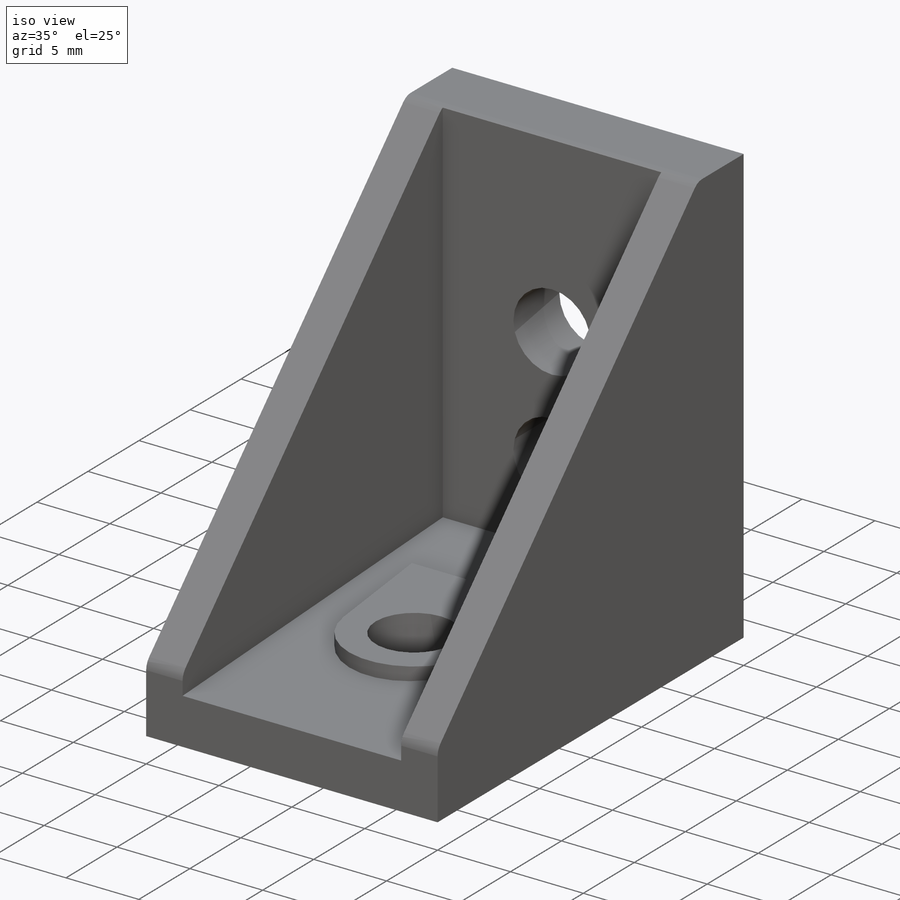
[diagram: iso view]
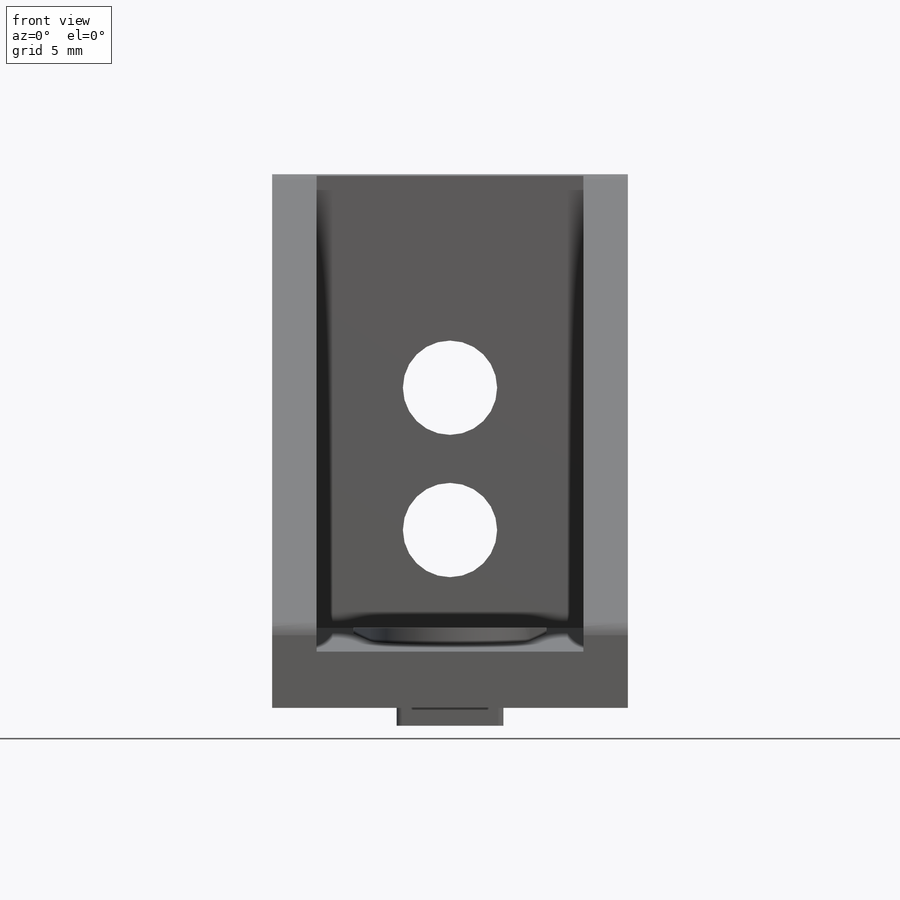
[diagram: front view]
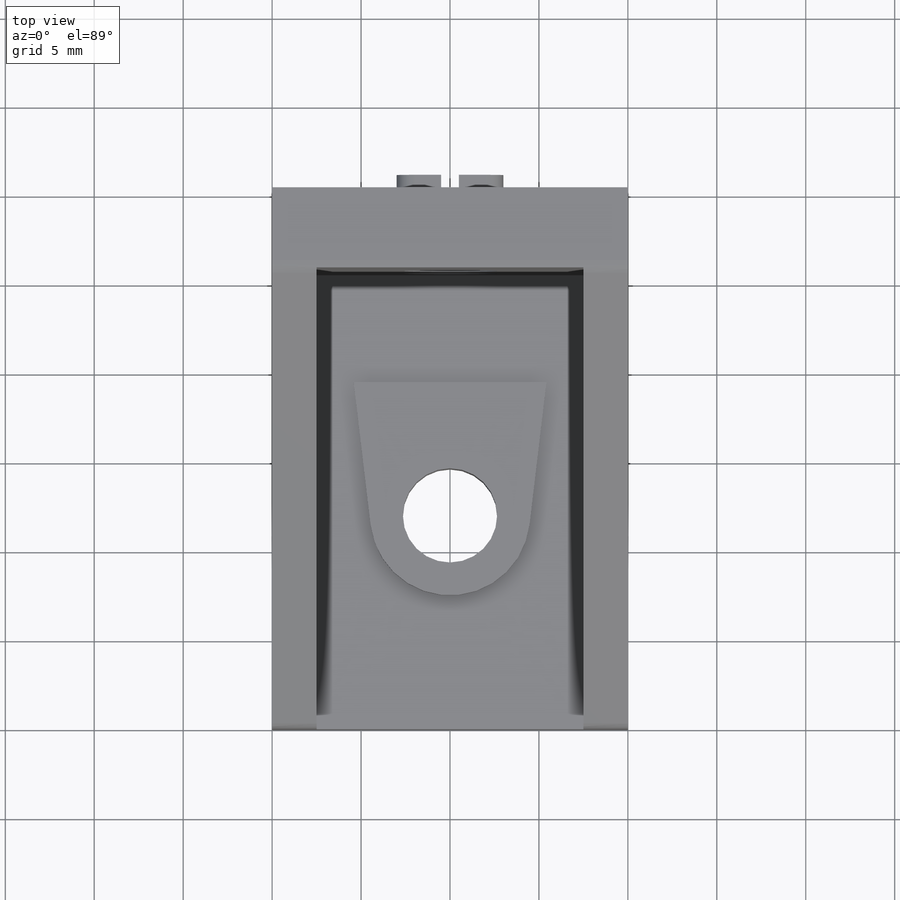
[diagram: top view]
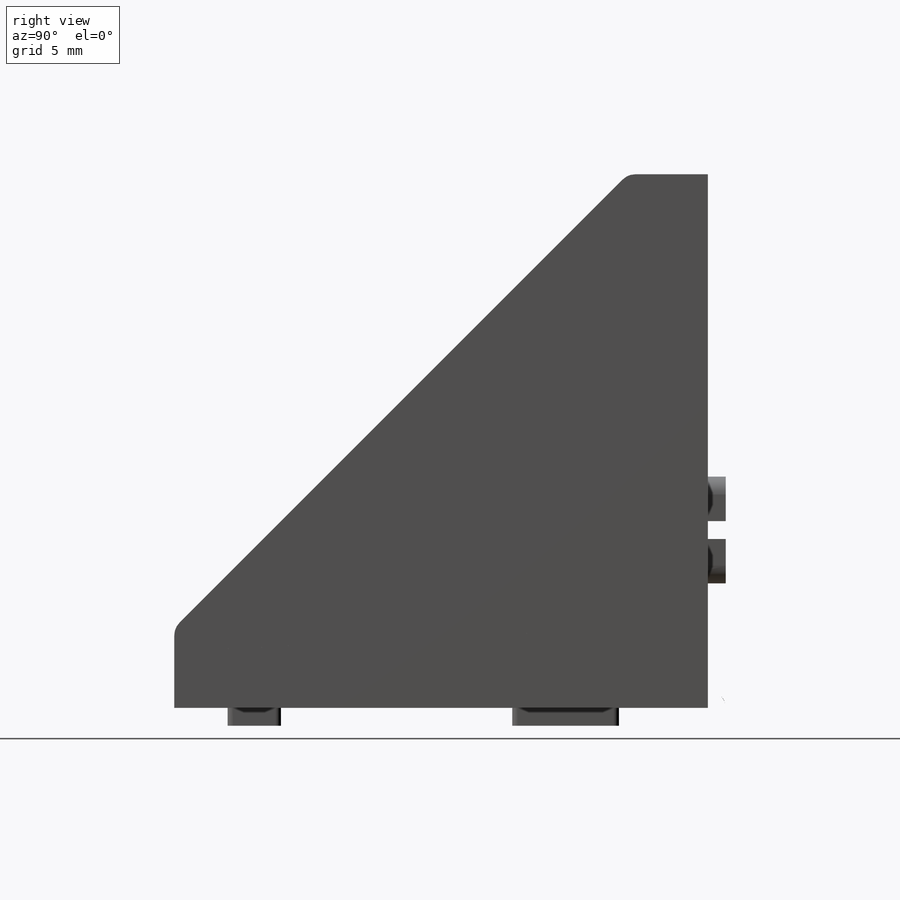
[diagram: right view]
SOLIDWORKS PART (.sldprt)
format: sldprt  version: not decoded by parser v0  size: 280,064 bytes
history: native  units: mm
features: plane x10, sketch x10, cut_extrude x6, extrude x4, material x1 (+13 scaffold rows collapsed)
feature tree (44):
  scaffold x13  (default folders/planes/origin — collapsed)
  material  "356.0-T6 Permanent Mold cast (SS)"
  plane  "Plane1"
  sketch  "Sketch1"
  extrude  "Boss-Extrude1"  Depth=10mm
  plane  "Plane2"
  sketch  "Sketch2"
  cut_extrude  "Cut-Extrude1"  Depth=7.5mm
  plane  "Plane3"
  sketch  "Sketch3"
  extrude  "Boss-Extrude2"  Depth=2.25mm
  plane  "Plane4"
  sketch  "Sketch4"
  cut_extrude  "Cut-Extrude2"  Depth=4.5mm
  plane  "Plane5"
  sketch  "Sketch5"
  cut_extrude  "Cut-Extrude3"  Depth=4.5mm
  plane  "Plane6"
  sketch  "Sketch6"
  cut_extrude  "Cut-Extrude4"  Depth=4.5mm
  plane  "Plane7"
  sketch  "Sketch7"
  extrude  "Boss-Extrude3"  Depth=1mm
  plane  "Plane8"
  sketch  "Sketch8"
  cut_extrude  "Cut-Extrude5"  Depth=1mm
  plane  "Plane9"
  sketch  "Sketch9"
  extrude  "Boss-Extrude4"  Depth=1mm
  plane  "Plane10"
  sketch  "Sketch10"
  cut_extrude  "Cut-Extrude6"  Depth=1mm
decode coverage: 10 of 20 modeling features carry decoded parameters
note: suppression state not decoded; provenance and decode notes live in map.json
